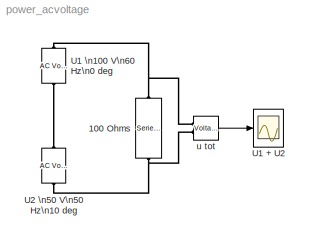
MODEL power_acvoltage
KIND model
BLOCK [Reference] 100 Ohms  REF=powerlib/Elements/Series RLC Branch
  AttributesFormatString = \\n
  Capacitance = inf
  Inductance = 0
  LConnTagsString = __new0
  Measurements = None
  PhysicalDomain = powersysdomain
  PortType = p1
  Ports = [0, 0, 0, 0, 0, 1, 1]
  RConnTagsString = __new0
  Resistance = 100
  SourceBlock = powerlib/Elements/Series RLC Branch
  SourceType = Series RLC Branch
  SubClassName = unknown
BLOCK [Scope] U1 + U2
  DataFormat = Array
  NumInputPorts = 1
  Ports = [1]
  TickLabels = on
  TimeRange = 0.5
  YMax = 180
  YMin = -180
BLOCK [Reference] U1 \n100 V\n60 Hz\n0 deg  REF=powerlib/Electrical\nSources/AC Voltage Source
  Amplitude = 100
  AttributesFormatString = \\n
  Description = source block
  Frequency = 60
  Measurements = None
  Phase = 0
  Ports = [0, 0, 0, 0, 0, 1, 1]
  SampleTime = 0
  SourceBlock = powerlib/Electrical\nSources/AC Voltage Source
  SourceType = AC Voltage Source
BLOCK [Reference] U2 \n50 V\n50 Hz\n10 deg  REF=powerlib/Electrical\nSources/AC Voltage Source
  Amplitude = 50
  AttributesFormatString = \\n
  Description = source block
  Frequency = 50
  Measurements = None
  Phase = 10
  Ports = [0, 0, 0, 0, 0, 1, 1]
  SampleTime = 0
  SourceBlock = powerlib/Electrical\nSources/AC Voltage Source
  SourceType = AC Voltage Source
BLOCK [Reference] u tot  REF=powerlib/Measurements/Voltage Measurement
  AttributesFormatString = \\n
  OutputType = Magnitude
  PSBequivalent = 0
  PhasorSimulation = off
  Ports = [0, 1, 0, 0, 0, 2]
  SourceBlock = powerlib/Measurements/Voltage Measurement
  SourceType = Voltage Measurement
  Tag = PoWeRsYsTeMmEaSuReMeNt
LINE u tot:1 -> U1 + U2:1
PNET net1: 100 Ohms:LConn1 -- U1 \n100 V\n60 Hz\n0 deg:RConn1 -- u tot:LConn1
PNET net2: 100 Ohms:RConn1 -- U2 \n50 V\n50 Hz\n10 deg:LConn1 -- u tot:LConn2
PLINE U1 \n100 V\n60 Hz\n0 deg:LConn1 -- U2 \n50 V\n50 Hz\n10 deg:RConn1
note: PNET lines group multi-terminal physical nets as a canonical sorted terminal list (undirected conserving connections); 2-terminal nets keep the pairwise PLINE form
